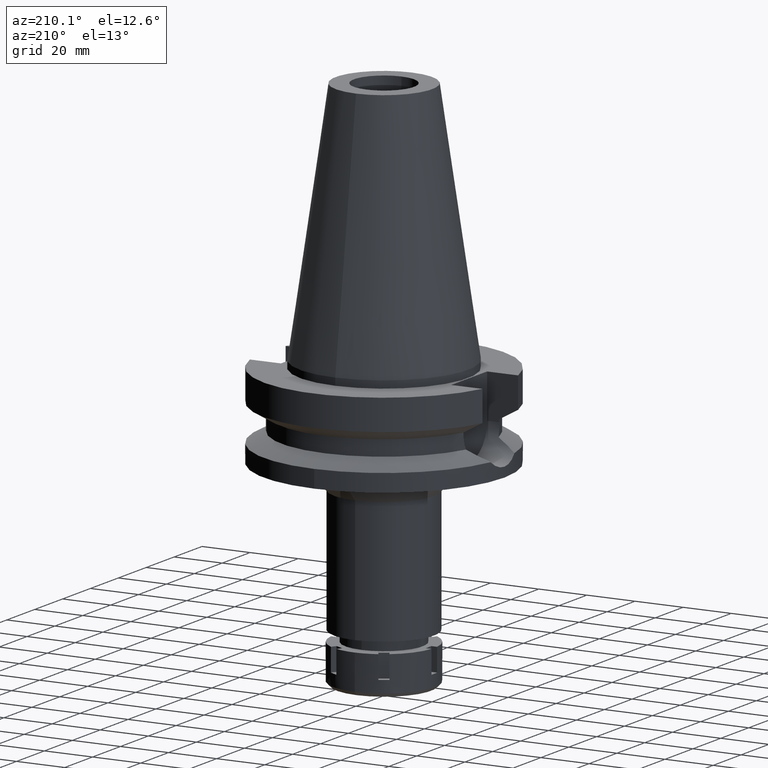
[diagram: clean part render]
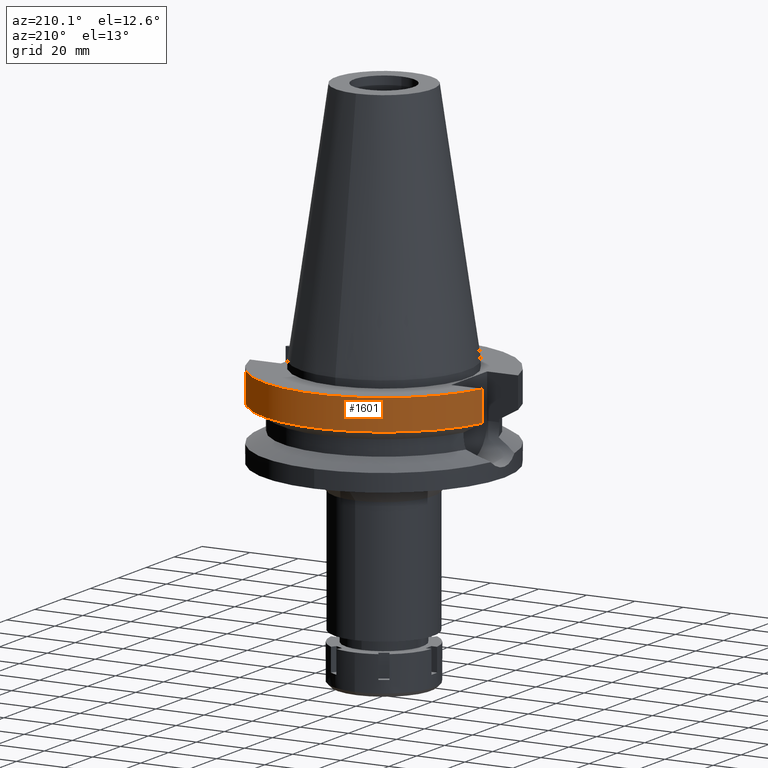
[diagram: same view with one face highlighted and labeled with its STEP entity id]
A machine part, auxiliary view. The second image highlights one B-rep face of the part: STEP entity #1601.
In plain terms, the highlighted cylindrical surface (partial cylindrical patch) has radius 50 mm, axis along (0, 0, -1).
Its self-contained STEP definition (entity closure, byte-faithful):
#152 = EDGE_CURVE ( 'NONE', #1971, #382, #1961, .T. ) ;
#156 = EDGE_CURVE ( 'NONE', #2864, #382, #2148, .T. ) ;
#212 = AXIS2_PLACEMENT_3D ( 'NONE', #1340, #2465, #3362 ) ;
#250 = ORIENTED_EDGE ( 'NONE', *, *, #152, .T. ) ;
#311 = DIRECTION ( 'NONE',  ( 0.0000000000000000000, 1.000000000000000000, 0.0000000000000000000 ) ) ;
#337 = CYLINDRICAL_SURFACE ( 'NONE', #2749, 50.00000000000000000 ) ;
#354 = CARTESIAN_POINT ( 'NONE',  ( 0.0000000000000000000, 2.602251983507999750E-14, 112.4900000000000091 ) ) ;
#372 = EDGE_LOOP ( 'NONE', ( #1929, #250, #1870, #3190 ) ) ;
#382 = VERTEX_POINT ( 'NONE', #943 ) ;
#677 = CIRCLE ( 'NONE', #1040, 50.00000000000000000 ) ;
#788 = CARTESIAN_POINT ( 'NONE',  ( -48.32057015392000210, 12.84999999999999964, -3.000000000000000000 ) ) ;
#943 = CARTESIAN_POINT ( 'NONE',  ( 48.32057015392000210, 12.84999999999999964, -3.000000000000000000 ) ) ;
#1040 = AXIS2_PLACEMENT_3D ( 'NONE', #3424, #1708, #311 ) ;
#1054 = CARTESIAN_POINT ( 'NONE',  ( 48.32056912872999987, 12.85000385508000065, -15.66265770223999887 ) ) ;
#1340 = CARTESIAN_POINT ( 'NONE',  ( 0.0000000000000000000, 2.602251983507999750E-14, -3.000000000000000000 ) ) ;
#1408 = CARTESIAN_POINT ( 'NONE',  ( -48.32057015392000210, 12.84999999999999964, -3.000000000000000000 ) ) ;
#1508 = VECTOR ( 'NONE', #2559, 1000.000000000000114 ) ;
#1519 = FACE_OUTER_BOUND ( 'NONE', #372, .T. ) ;
#1601 = ADVANCED_FACE ( 'NONE', ( #1519 ), #337, .T. ) ;
#1708 = DIRECTION ( 'NONE',  ( 0.0000000000000000000, 0.0000000000000000000, 1.000000000000000000 ) ) ;
#1870 = ORIENTED_EDGE ( 'NONE', *, *, #156, .F. ) ;
#1887 = VERTEX_POINT ( 'NONE', #3027 ) ;
#1929 = ORIENTED_EDGE ( 'NONE', *, *, #2016, .F. ) ;
#1961 = CIRCLE ( 'NONE', #212, 50.00000000000000000 ) ;
#1971 = VERTEX_POINT ( 'NONE', #1408 ) ;
#2016 = EDGE_CURVE ( 'NONE', #1971, #1887, #2792, .T. ) ;
#2148 = LINE ( 'NONE', #2494, #2258 ) ;
#2258 = VECTOR ( 'NONE', #3605, 1000.000000000000000 ) ;
#2465 = DIRECTION ( 'NONE',  ( 0.0000000000000000000, 0.0000000000000000000, -1.000000000000000000 ) ) ;
#2480 = EDGE_CURVE ( 'NONE', #2864, #1887, #677, .T. ) ;
#2494 = CARTESIAN_POINT ( 'NONE',  ( 48.32056912872999987, 12.85000385508000065, -15.66265770223999887 ) ) ;
#2559 = DIRECTION ( 'NONE',  ( 8.097468459567602670E-08, 3.044934166977851059E-07, -0.9999999999999503730 ) ) ;
#2749 = AXIS2_PLACEMENT_3D ( 'NONE', #354, #3486, #3171 ) ;
#2792 = LINE ( 'NONE', #788, #1508 ) ;
#2864 = VERTEX_POINT ( 'NONE', #1054 ) ;
#3027 = CARTESIAN_POINT ( 'NONE',  ( -48.32056912856999986, 12.85000385569999892, -15.66265769672999930 ) ) ;
#3171 = DIRECTION ( 'NONE',  ( 0.0000000000000000000, -1.000000000000000000, 0.0000000000000000000 ) ) ;
#3190 = ORIENTED_EDGE ( 'NONE', *, *, #2480, .T. ) ;
#3362 = DIRECTION ( 'NONE',  ( 0.0000000000000000000, 1.000000000000000000, 0.0000000000000000000 ) ) ;
#3424 = CARTESIAN_POINT ( 'NONE',  ( 0.0000000000000000000, 1.006319759053999930E-14, -15.66269223573000069 ) ) ;
#3486 = DIRECTION ( 'NONE',  ( 0.0000000000000000000, 0.0000000000000000000, -1.000000000000000000 ) ) ;
#3605 = DIRECTION ( 'NONE',  ( 8.096175887586604432E-08, -3.044448087526851922E-07, 0.9999999999999504841 ) ) ;